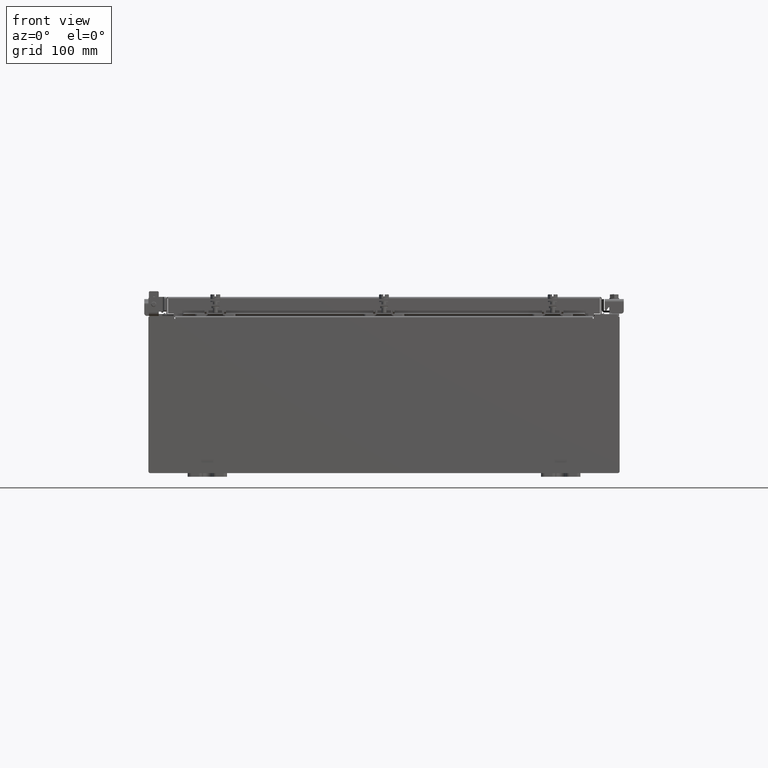
[diagram: clean part render]
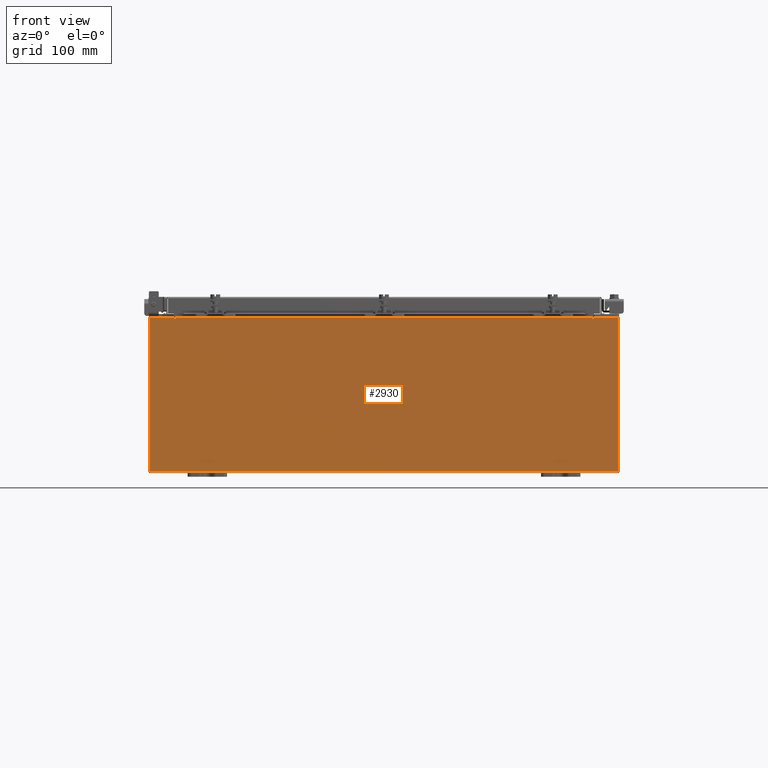
[diagram: same view with one face highlighted and labeled with its STEP entity id]
A machine part, front view. The second image highlights one B-rep face of the part: STEP entity #2930.
In plain terms, the highlighted planar face has unit normal (-0, 1, -0).
Its self-contained STEP definition (entity closure, byte-faithful):
#212 = LINE ( 'NONE', #7891, #13092 ) ;
#370 = DIRECTION ( 'NONE',  ( 1.000000000000000000, 0.0000000000000000000, 0.0000000000000000000 ) ) ;
#426 = VERTEX_POINT ( 'NONE', #2803 ) ;
#593 = DIRECTION ( 'NONE',  ( 0.0000000000000000000, -0.0000000000000000000, -1.000000000000000000 ) ) ;
#655 = DIRECTION ( 'NONE',  ( 0.0000000000000000000, -1.000000000000000000, 0.0000000000000000000 ) ) ;
#855 = DIRECTION ( 'NONE',  ( -1.000000000000000000, -0.0000000000000000000, -0.0000000000000000000 ) ) ;
#894 = PLANE ( 'NONE',  #21779 ) ;
#1013 = EDGE_CURVE ( 'NONE', #3420, #17148, #5020, .T. ) ;
#1023 = AXIS2_PLACEMENT_3D ( 'NONE', #16811, #6278, #18540 ) ;
#1255 = ORIENTED_EDGE ( 'NONE', *, *, #6900, .F. ) ;
#1555 = ORIENTED_EDGE ( 'NONE', *, *, #2152, .F. ) ;
#1601 = CARTESIAN_POINT ( 'NONE',  ( -11.92530000000000000, 0.0000000000000000000, 3.925299999999999600 ) ) ;
#1987 = EDGE_CURVE ( 'NONE', #16212, #13277, #17079, .T. ) ;
#2152 = EDGE_CURVE ( 'NONE', #426, #16605, #17870, .T. ) ;
#2314 = CARTESIAN_POINT ( 'NONE',  ( 0.0000000000000000000, 0.0000000000000000000, 0.0000000000000000000 ) ) ;
#2535 = LINE ( 'NONE', #16856, #20574 ) ;
#2803 = CARTESIAN_POINT ( 'NONE',  ( 10.63720000000000400, 0.0000000000000000000, 3.874949999999999700 ) ) ;
#2930 = ADVANCED_FACE ( 'NONE', ( #3880 ), #894, .F. ) ;
#3057 = CARTESIAN_POINT ( 'NONE',  ( -10.67455000000000200, 0.0000000000000000000, 3.874949999999999700 ) ) ;
#3420 = VERTEX_POINT ( 'NONE', #18499 ) ;
#3880 = FACE_OUTER_BOUND ( 'NONE', #5603, .T. ) ;
#4239 = CIRCLE ( 'NONE', #5494, 0.01867499999999949400 ) ;
#4377 = LINE ( 'NONE', #19317, #13711 ) ;
#4506 = EDGE_CURVE ( 'NONE', #16212, #21204, #15852, .T. ) ;
#4642 = CARTESIAN_POINT ( 'NONE',  ( 11.92530000000000000, 0.0000000000000000000, 3.925299999999999600 ) ) ;
#4664 = ORIENTED_EDGE ( 'NONE', *, *, #18384, .T. ) ;
#4722 = ORIENTED_EDGE ( 'NONE', *, *, #1013, .T. ) ;
#5020 = LINE ( 'NONE', #20008, #13808 ) ;
#5376 = DIRECTION ( 'NONE',  ( 0.0000000000000000000, 0.0000000000000000000, -1.000000000000000000 ) ) ;
#5471 = CARTESIAN_POINT ( 'NONE',  ( -10.63720000000000400, -0.0000000000000000000, 3.874949999999999700 ) ) ;
#5494 = AXIS2_PLACEMENT_3D ( 'NONE', #10042, #22271, #11810 ) ;
#5603 = EDGE_LOOP ( 'NONE', ( #13653, #1255, #14386, #4664, #1555, #19356, #14934, #20591, #9006, #14073, #11083, #4722 ) ) ;
#5664 = EDGE_CURVE ( 'NONE', #13277, #6218, #22286, .T. ) ;
#6138 = EDGE_CURVE ( 'NONE', #6218, #12309, #17987, .T. ) ;
#6169 = VERTEX_POINT ( 'NONE', #20075 ) ;
#6218 = VERTEX_POINT ( 'NONE', #11430 ) ;
#6278 = DIRECTION ( 'NONE',  ( -0.0000000000000000000, 1.000000000000000000, -0.0000000000000000000 ) ) ;
#6900 = EDGE_CURVE ( 'NONE', #7255, #22221, #22268, .T. ) ;
#7174 = LINE ( 'NONE', #19688, #15980 ) ;
#7255 = VERTEX_POINT ( 'NONE', #5471 ) ;
#7714 = EDGE_CURVE ( 'NONE', #21204, #426, #4239, .T. ) ;
#7733 = VECTOR ( 'NONE', #370, 39.37007874015748100 ) ;
#7891 = CARTESIAN_POINT ( 'NONE',  ( -10.63720000000000400, 1.024442997624098700E-016, 3.912299999999999700 ) ) ;
#9006 = ORIENTED_EDGE ( 'NONE', *, *, #5664, .T. ) ;
#9492 = CARTESIAN_POINT ( 'NONE',  ( -11.92530000000000000, 0.0000000000000000000, -3.925299999999999600 ) ) ;
#9894 = DIRECTION ( 'NONE',  ( 0.0000000000000000000, 0.0000000000000000000, -1.000000000000000000 ) ) ;
#10042 = CARTESIAN_POINT ( 'NONE',  ( 10.65587500000000200, 0.0000000000000000000, 3.874949999999999700 ) ) ;
#10379 = EDGE_CURVE ( 'NONE', #12309, #3420, #7174, .T. ) ;
#11083 = ORIENTED_EDGE ( 'NONE', *, *, #10379, .T. ) ;
#11430 = CARTESIAN_POINT ( 'NONE',  ( 11.92530000000000000, 0.0000000000000000000, -3.925299999999999600 ) ) ;
#11810 = DIRECTION ( 'NONE',  ( 0.0000000000000000000, 0.0000000000000000000, -1.000000000000000000 ) ) ;
#12073 = EDGE_CURVE ( 'NONE', #6169, #7255, #4377, .T. ) ;
#12119 = CARTESIAN_POINT ( 'NONE',  ( 10.67454999999983300, -0.0000000000000000000, -4.633366117301815000E-013 ) ) ;
#12309 = VERTEX_POINT ( 'NONE', #9492 ) ;
#12470 = VECTOR ( 'NONE', #9894, 39.37007874015748100 ) ;
#12785 = VECTOR ( 'NONE', #855, 39.37007874015748100 ) ;
#13004 = CARTESIAN_POINT ( 'NONE',  ( -11.92530000000000000, 0.0000000000000000000, -3.925299999999999600 ) ) ;
#13092 = VECTOR ( 'NONE', #21859, 39.37007874015748100 ) ;
#13277 = VERTEX_POINT ( 'NONE', #4642 ) ;
#13653 = ORIENTED_EDGE ( 'NONE', *, *, #22114, .F. ) ;
#13711 = VECTOR ( 'NONE', #5376, 39.37007874015748100 ) ;
#13808 = VECTOR ( 'NONE', #19988, 39.37007874015748100 ) ;
#14073 = ORIENTED_EDGE ( 'NONE', *, *, #6138, .T. ) ;
#14386 = ORIENTED_EDGE ( 'NONE', *, *, #12073, .F. ) ;
#14437 = DIRECTION ( 'NONE',  ( -0.0000000000000000000, -0.0000000000000000000, 1.000000000000000000 ) ) ;
#14904 = CARTESIAN_POINT ( 'NONE',  ( 10.63720000000000400, 0.0000000000000000000, 0.0000000000000000000 ) ) ;
#14934 = ORIENTED_EDGE ( 'NONE', *, *, #4506, .F. ) ;
#15009 = DIRECTION ( 'NONE',  ( 0.0000000000000000000, 0.0000000000000000000, 1.000000000000000000 ) ) ;
#15072 = DIRECTION ( 'NONE',  ( 0.0000000000000000000, 0.0000000000000000000, 1.000000000000000000 ) ) ;
#15852 = LINE ( 'NONE', #12119, #16407 ) ;
#15966 = CARTESIAN_POINT ( 'NONE',  ( 10.63720000000000400, 0.0000000000000000000, 3.912299999999999700 ) ) ;
#15980 = VECTOR ( 'NONE', #14437, 39.37007874015748100 ) ;
#16212 = VERTEX_POINT ( 'NONE', #16604 ) ;
#16407 = VECTOR ( 'NONE', #20827, 39.37007874015748100 ) ;
#16604 = CARTESIAN_POINT ( 'NONE',  ( 10.67455000000000200, 0.0000000000000000000, 3.925299999999999600 ) ) ;
#16605 = VERTEX_POINT ( 'NONE', #15966 ) ;
#16811 = CARTESIAN_POINT ( 'NONE',  ( -10.65587500000000200, 0.0000000000000000000, 3.874949999999999700 ) ) ;
#16856 = CARTESIAN_POINT ( 'NONE',  ( -10.67455000000000200, -0.0000000000000000000, 0.0000000000000000000 ) ) ;
#17079 = LINE ( 'NONE', #1601, #7733 ) ;
#17148 = VERTEX_POINT ( 'NONE', #20788 ) ;
#17870 = LINE ( 'NONE', #14904, #21927 ) ;
#17987 = LINE ( 'NONE', #13004, #12785 ) ;
#18384 = EDGE_CURVE ( 'NONE', #6169, #16605, #212, .T. ) ;
#18499 = CARTESIAN_POINT ( 'NONE',  ( -11.92530000000000000, 0.0000000000000000000, 3.925299999999999600 ) ) ;
#18540 = DIRECTION ( 'NONE',  ( 0.0000000000000000000, 0.0000000000000000000, -1.000000000000000000 ) ) ;
#19317 = CARTESIAN_POINT ( 'NONE',  ( -10.63720000000000400, -0.0000000000000000000, 0.0000000000000000000 ) ) ;
#19356 = ORIENTED_EDGE ( 'NONE', *, *, #7714, .F. ) ;
#19668 = CARTESIAN_POINT ( 'NONE',  ( 10.67455000000000200, 0.0000000000000000000, 3.874949999999999700 ) ) ;
#19688 = CARTESIAN_POINT ( 'NONE',  ( -11.92530000000000000, 0.0000000000000000000, 3.925299999999999600 ) ) ;
#19988 = DIRECTION ( 'NONE',  ( 1.000000000000000000, 0.0000000000000000000, 0.0000000000000000000 ) ) ;
#20008 = CARTESIAN_POINT ( 'NONE',  ( -11.92530000000000000, 0.0000000000000000000, 3.925299999999999600 ) ) ;
#20075 = CARTESIAN_POINT ( 'NONE',  ( -10.63720000000000400, 1.024442997624098700E-016, 3.912299999999999700 ) ) ;
#20574 = VECTOR ( 'NONE', #15072, 39.37007874015748100 ) ;
#20591 = ORIENTED_EDGE ( 'NONE', *, *, #1987, .T. ) ;
#20788 = CARTESIAN_POINT ( 'NONE',  ( -10.67455000000000200, 0.0000000000000000000, 3.925299999999999600 ) ) ;
#20827 = DIRECTION ( 'NONE',  ( -4.340572780400004900E-014, 0.0000000000000000000, -1.000000000000000000 ) ) ;
#21204 = VERTEX_POINT ( 'NONE', #19668 ) ;
#21779 = AXIS2_PLACEMENT_3D ( 'NONE', #2314, #655, #593 ) ;
#21859 = DIRECTION ( 'NONE',  ( 1.000000000000000000, 0.0000000000000000000, 0.0000000000000000000 ) ) ;
#21927 = VECTOR ( 'NONE', #15009, 39.37007874015748100 ) ;
#22114 = EDGE_CURVE ( 'NONE', #22221, #17148, #2535, .T. ) ;
#22132 = CARTESIAN_POINT ( 'NONE',  ( 11.92530000000000000, 0.0000000000000000000, 3.925299999999999600 ) ) ;
#22221 = VERTEX_POINT ( 'NONE', #3057 ) ;
#22268 = CIRCLE ( 'NONE', #1023, 0.01867499999999949400 ) ;
#22271 = DIRECTION ( 'NONE',  ( -0.0000000000000000000, 1.000000000000000000, -0.0000000000000000000 ) ) ;
#22286 = LINE ( 'NONE', #22132, #12470 ) ;